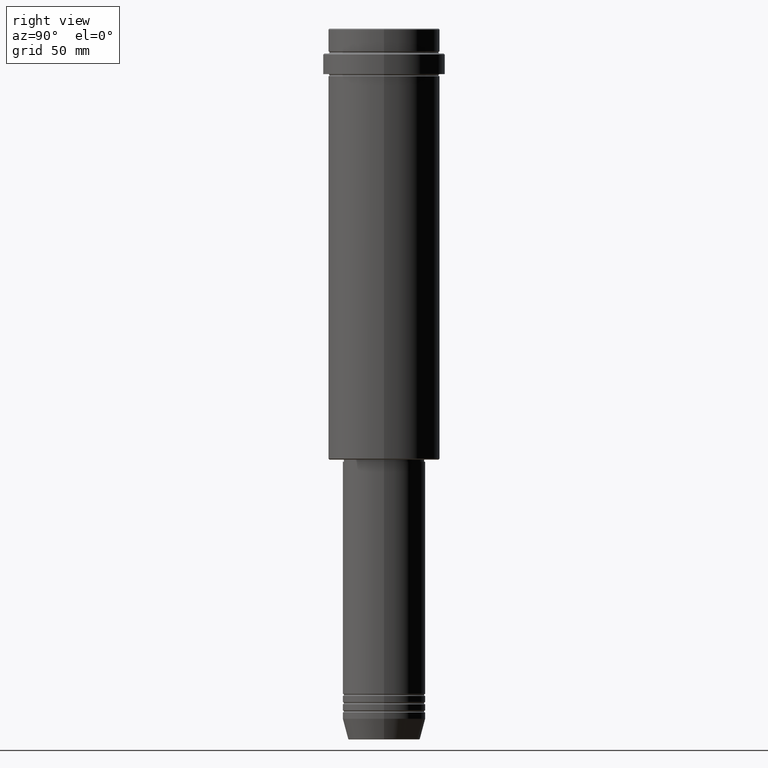
[diagram: clean part render]
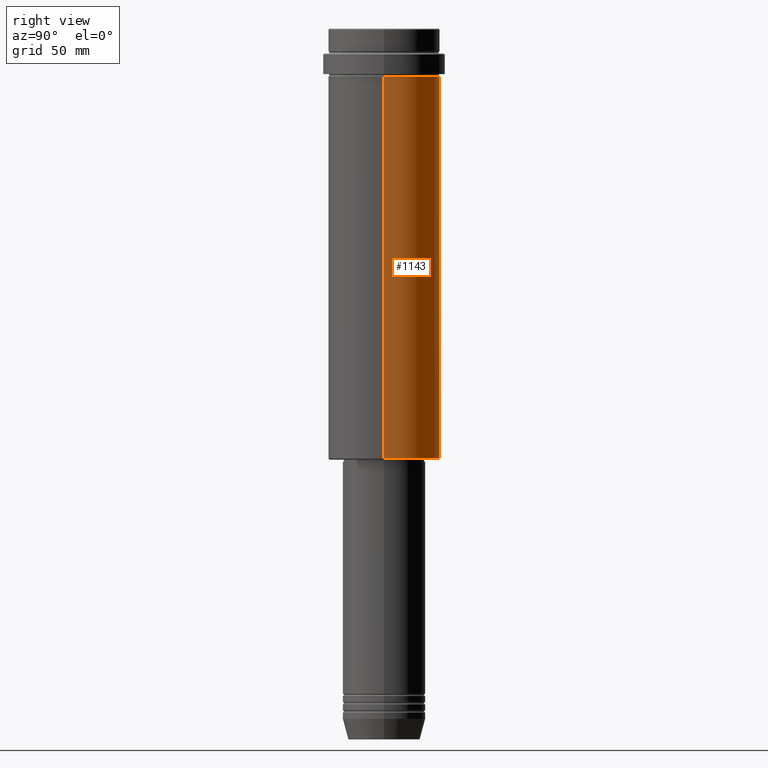
[diagram: same view with one face highlighted and labeled with its STEP entity id]
A machine part, right view. The second image highlights one B-rep face of the part: STEP entity #1143.
In plain terms, the highlighted cylindrical surface (partial cylindrical patch) has radius 27 mm, axis along (-0, -0, 1).
Its self-contained STEP definition (entity closure, byte-faithful):
#78 = AXIS2_PLACEMENT_3D ( 'NONE', #414, #544, #438 ) ;
#101 = VECTOR ( 'NONE', #959, 1000.000000000000000 ) ;
#107 = AXIS2_PLACEMENT_3D ( 'NONE', #901, #796, #209 ) ;
#115 = VERTEX_POINT ( 'NONE', #794 ) ;
#179 = CARTESIAN_POINT ( 'NONE',  ( 27.00000000000000355, 0.000000000000000000, -207.5000000000000284 ) ) ;
#209 = DIRECTION ( 'NONE',  ( 1.000000000000000000, 0.000000000000000000, 0.000000000000000000 ) ) ;
#279 = ORIENTED_EDGE ( 'NONE', *, *, #502, .F. ) ;
#367 = FACE_OUTER_BOUND ( 'NONE', #1325, .T. ) ;
#377 = LINE ( 'NONE', #1351, #947 ) ;
#380 = CIRCLE ( 'NONE', #78, 27.00000000000000355 ) ;
#384 = EDGE_CURVE ( 'NONE', #1244, #115, #649, .T. ) ;
#399 = EDGE_CURVE ( 'NONE', #115, #559, #748, .T. ) ;
#414 = CARTESIAN_POINT ( 'NONE',  ( 0.000000000000000000, 0.000000000000000000, -23.00000000000001421 ) ) ;
#422 = CARTESIAN_POINT ( 'NONE',  ( -27.00000000000000355, 3.306546357697854128E-15, 0.000000000000000000 ) ) ;
#432 = CARTESIAN_POINT ( 'NONE',  ( 0.000000000000000000, 0.000000000000000000, -207.5000000000000284 ) ) ;
#438 = DIRECTION ( 'NONE',  ( 1.000000000000000000, 0.000000000000000000, 0.000000000000000000 ) ) ;
#502 = EDGE_CURVE ( 'NONE', #757, #559, #380, .T. ) ;
#544 = DIRECTION ( 'NONE',  ( -0.000000000000000000, -0.000000000000000000, 1.000000000000000000 ) ) ;
#559 = VERTEX_POINT ( 'NONE', #572 ) ;
#572 = CARTESIAN_POINT ( 'NONE',  ( -27.00000000000000355, 3.306546357697854128E-15, -23.00000000000001421 ) ) ;
#642 = ORIENTED_EDGE ( 'NONE', *, *, #384, .T. ) ;
#649 = CIRCLE ( 'NONE', #806, 27.00000000000000355 ) ;
#688 = CYLINDRICAL_SURFACE ( 'NONE', #107, 27.00000000000000355 ) ;
#748 = LINE ( 'NONE', #422, #101 ) ;
#757 = VERTEX_POINT ( 'NONE', #814 ) ;
#777 = ORIENTED_EDGE ( 'NONE', *, *, #820, .F. ) ;
#794 = CARTESIAN_POINT ( 'NONE',  ( -27.00000000000000355, 3.306546357697854128E-15, -207.5000000000000284 ) ) ;
#796 = DIRECTION ( 'NONE',  ( -0.000000000000000000, -0.000000000000000000, 1.000000000000000000 ) ) ;
#806 = AXIS2_PLACEMENT_3D ( 'NONE', #432, #1390, #1300 ) ;
#814 = CARTESIAN_POINT ( 'NONE',  ( 27.00000000000000355, 0.000000000000000000, -23.00000000000001421 ) ) ;
#820 = EDGE_CURVE ( 'NONE', #1244, #757, #377, .T. ) ;
#901 = CARTESIAN_POINT ( 'NONE',  ( 0.000000000000000000, 0.000000000000000000, 0.000000000000000000 ) ) ;
#907 = ORIENTED_EDGE ( 'NONE', *, *, #399, .T. ) ;
#947 = VECTOR ( 'NONE', #1131, 1000.000000000000000 ) ;
#959 = DIRECTION ( 'NONE',  ( -0.000000000000000000, -0.000000000000000000, 1.000000000000000000 ) ) ;
#1131 = DIRECTION ( 'NONE',  ( -0.000000000000000000, -0.000000000000000000, 1.000000000000000000 ) ) ;
#1143 = ADVANCED_FACE ( 'NONE', ( #367 ), #688, .T. ) ;
#1244 = VERTEX_POINT ( 'NONE', #179 ) ;
#1300 = DIRECTION ( 'NONE',  ( -1.000000000000000000, 0.000000000000000000, 0.000000000000000000 ) ) ;
#1325 = EDGE_LOOP ( 'NONE', ( #642, #907, #279, #777 ) ) ;
#1351 = CARTESIAN_POINT ( 'NONE',  ( 27.00000000000000355, 0.000000000000000000, 0.000000000000000000 ) ) ;
#1390 = DIRECTION ( 'NONE',  ( -0.000000000000000000, -0.000000000000000000, 1.000000000000000000 ) ) ;